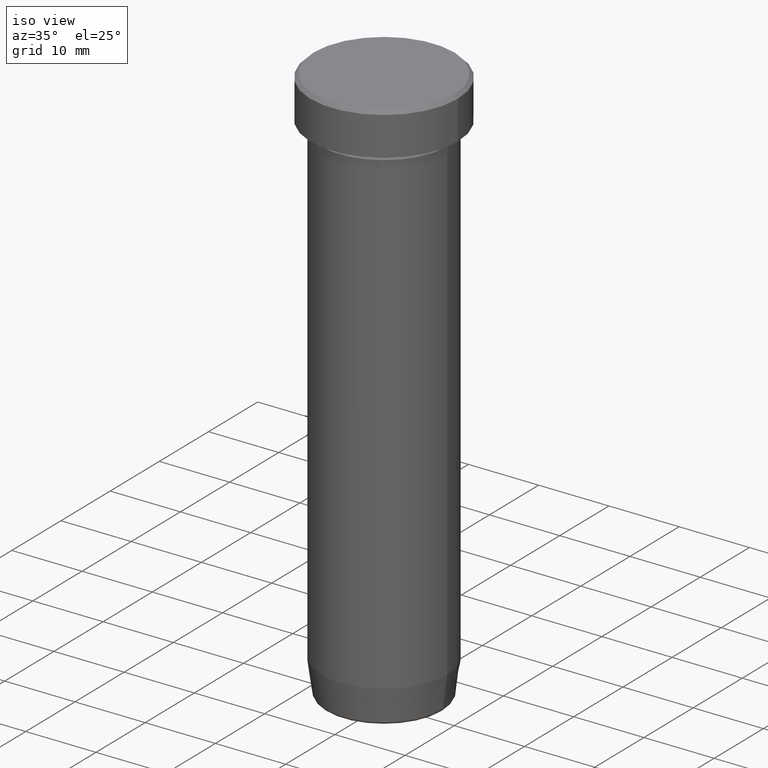
[diagram: clean part render]
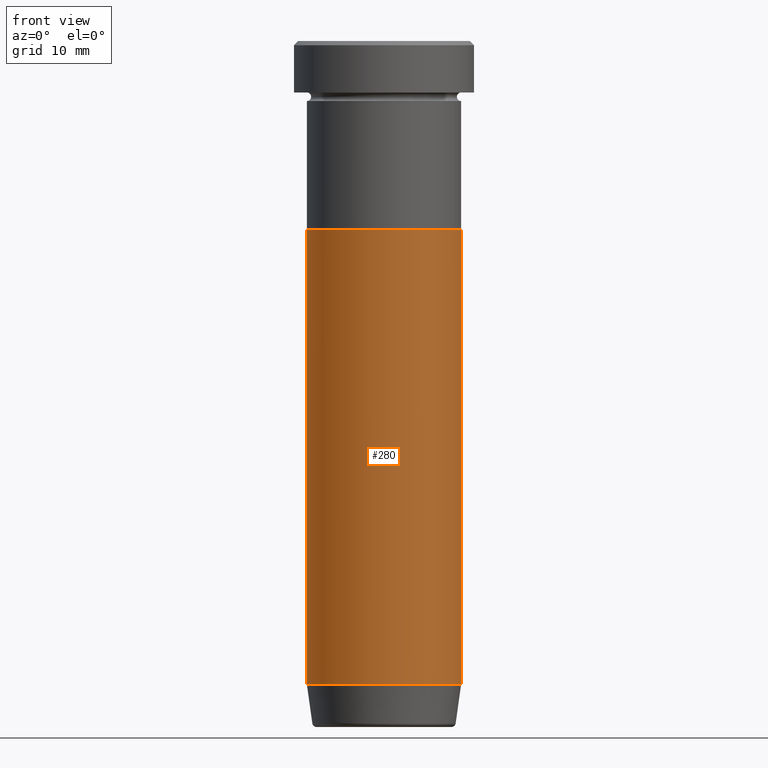
[diagram: tour spotlight — one face highlighted and labeled with its STEP entity id]
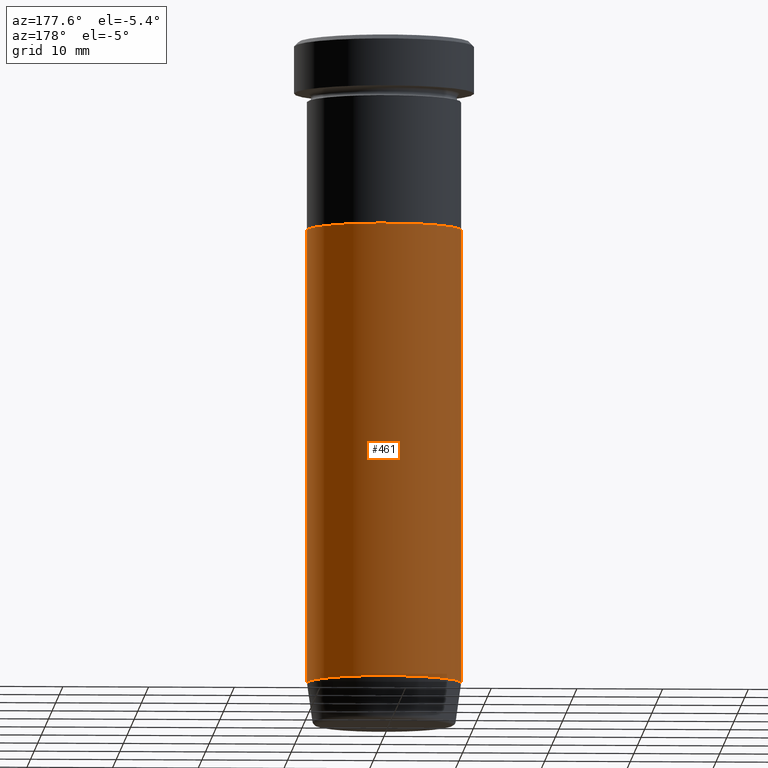
[diagram: tour spotlight — one face highlighted and labeled with its STEP entity id]
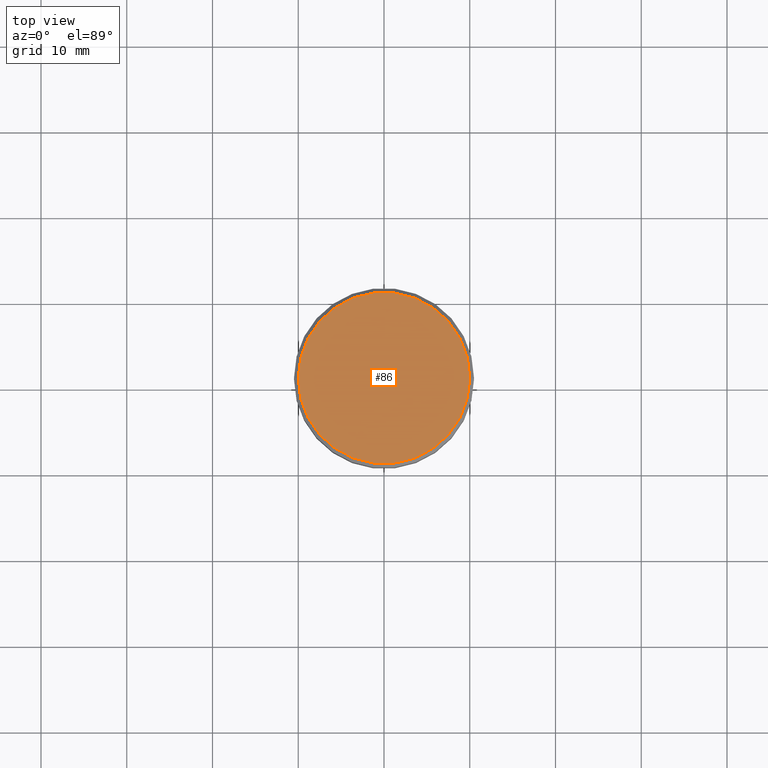
[diagram: tour spotlight — one face highlighted and labeled with its STEP entity id]
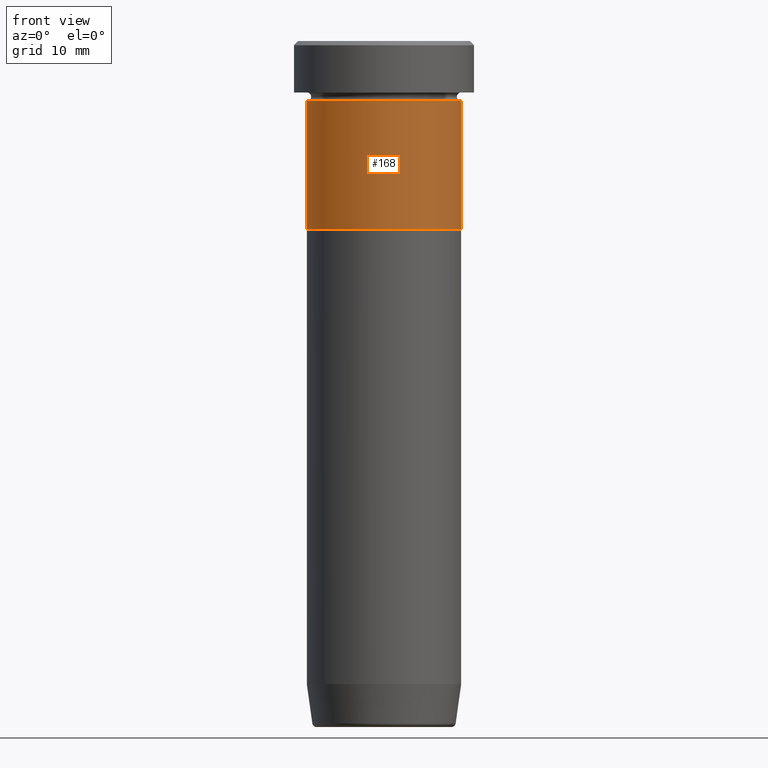
[diagram: tour spotlight — one face highlighted and labeled with its STEP entity id]
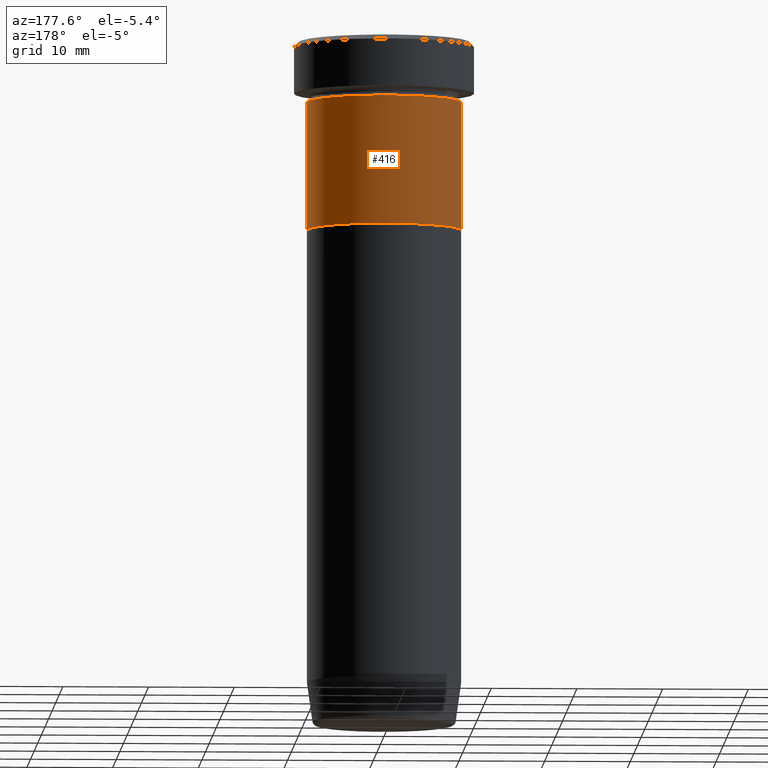
[diagram: tour spotlight — one face highlighted and labeled with its STEP entity id]
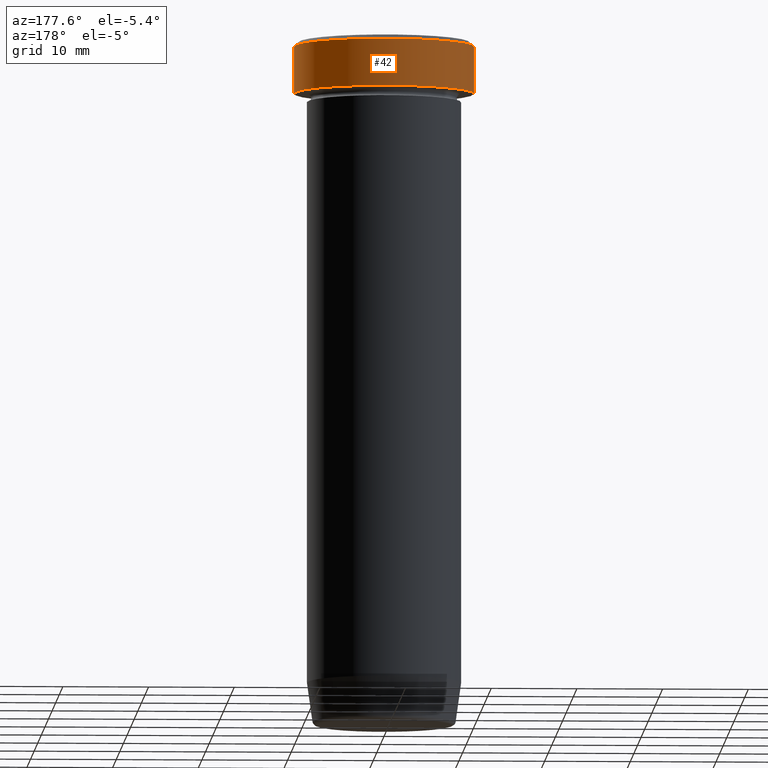
[diagram: tour spotlight — one face highlighted and labeled with its STEP entity id]
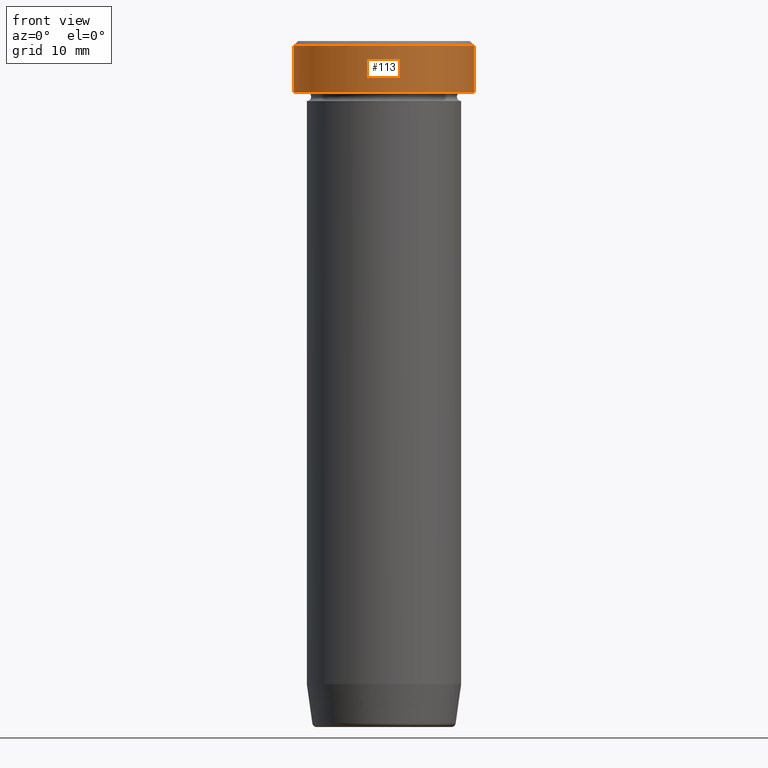
[diagram: tour spotlight — one face highlighted and labeled with its STEP entity id]
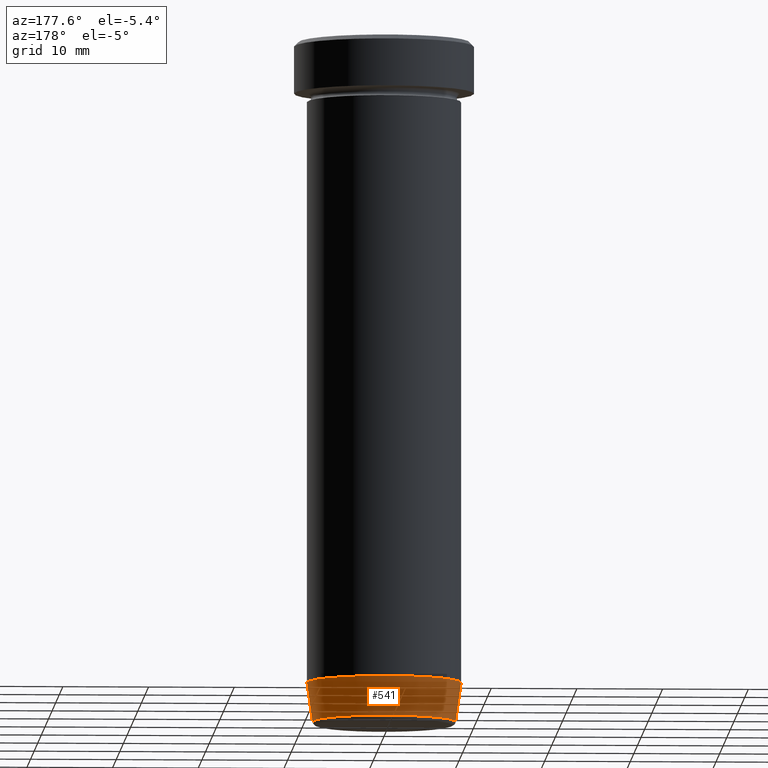
[diagram: tour spotlight — one face highlighted and labeled with its STEP entity id]
A machine part: a face-by-face anatomy tour. The part has 21 B-rep faces; the first image is the clean iso view, then the 8 largest visible faces are spotlighted one at a time (largest first), each with its STEP entity span.

Face 1 — front view, entity #280. In plain terms, the highlighted cylindrical surface (partial cylindrical patch) has radius 9 mm, axis along (-0, -0, 1).
Definition (entity closure, byte-faithful):
#3 = DIRECTION ( 'NONE',  ( -0.000000000000000000, -0.000000000000000000, 1.000000000000000000 ) ) ;
#18 = CARTESIAN_POINT ( 'NONE',  ( 0.000000000000000000, 0.000000000000000000, -22.00000000000000000 ) ) ;
#25 = CARTESIAN_POINT ( 'NONE',  ( 9.000000000000000000, 0.000000000000000000, 0.000000000000000000 ) ) ;
#55 = EDGE_CURVE ( 'NONE', #258, #388, #386, .T. ) ;
#63 = DIRECTION ( 'NONE',  ( -0.000000000000000000, -0.000000000000000000, 1.000000000000000000 ) ) ;
#72 = ORIENTED_EDGE ( 'NONE', *, *, #297, .T. ) ;
#96 = DIRECTION ( 'NONE',  ( -0.000000000000000000, -0.000000000000000000, 1.000000000000000000 ) ) ;
#99 = CIRCLE ( 'NONE', #534, 9.000000000000000000 ) ;
#140 = CYLINDRICAL_SURFACE ( 'NONE', #513, 9.000000000000000000 ) ;
#146 = CIRCLE ( 'NONE', #410, 9.000000000000000000 ) ;
#177 = VECTOR ( 'NONE', #216, 1000.000000000000000 ) ;
#179 = DIRECTION ( 'NONE',  ( 1.000000000000000000, 0.000000000000000000, 0.000000000000000000 ) ) ;
#185 = VERTEX_POINT ( 'NONE', #590 ) ;
#200 = FACE_OUTER_BOUND ( 'NONE', #269, .T. ) ;
#206 = DIRECTION ( 'NONE',  ( 1.000000000000000000, 0.000000000000000000, 0.000000000000000000 ) ) ;
#216 = DIRECTION ( 'NONE',  ( -0.000000000000000000, -0.000000000000000000, 1.000000000000000000 ) ) ;
#258 = VERTEX_POINT ( 'NONE', #422 ) ;
#269 = EDGE_LOOP ( 'NONE', ( #335, #72, #357, #424 ) ) ;
#280 = ADVANCED_FACE ( 'NONE', ( #200 ), #140, .T. ) ;
#297 = EDGE_CURVE ( 'NONE', #258, #491, #99, .T. ) ;
#324 = CARTESIAN_POINT ( 'NONE',  ( 0.000000000000000000, 0.000000000000000000, 0.000000000000000000 ) ) ;
#335 = ORIENTED_EDGE ( 'NONE', *, *, #55, .F. ) ;
#344 = DIRECTION ( 'NONE',  ( -0.000000000000000000, -0.000000000000000000, 1.000000000000000000 ) ) ;
#348 = LINE ( 'NONE', #25, #177 ) ;
#357 = ORIENTED_EDGE ( 'NONE', *, *, #474, .T. ) ;
#380 = CARTESIAN_POINT ( 'NONE',  ( -9.000000000000000000, 1.102182119232617714E-15, -22.00000000000000000 ) ) ;
#386 = LINE ( 'NONE', #484, #521 ) ;
#388 = VERTEX_POINT ( 'NONE', #380 ) ;
#410 = AXIS2_PLACEMENT_3D ( 'NONE', #18, #63, #206 ) ;
#422 = CARTESIAN_POINT ( 'NONE',  ( -9.000000000000000000, 1.102182119232617714E-15, -75.00000000000001421 ) ) ;
#424 = ORIENTED_EDGE ( 'NONE', *, *, #430, .F. ) ;
#430 = EDGE_CURVE ( 'NONE', #388, #185, #146, .T. ) ;
#474 = EDGE_CURVE ( 'NONE', #491, #185, #348, .T. ) ;
#484 = CARTESIAN_POINT ( 'NONE',  ( -9.000000000000000000, 1.102182119232617714E-15, 0.000000000000000000 ) ) ;
#491 = VERTEX_POINT ( 'NONE', #578 ) ;
#500 = CARTESIAN_POINT ( 'NONE',  ( 0.000000000000000000, 0.000000000000000000, -75.00000000000001421 ) ) ;
#506 = DIRECTION ( 'NONE',  ( 1.000000000000000000, 0.000000000000000000, 0.000000000000000000 ) ) ;
#513 = AXIS2_PLACEMENT_3D ( 'NONE', #324, #3, #506 ) ;
#521 = VECTOR ( 'NONE', #344, 1000.000000000000000 ) ;
#534 = AXIS2_PLACEMENT_3D ( 'NONE', #500, #96, #179 ) ;
#578 = CARTESIAN_POINT ( 'NONE',  ( 9.000000000000000000, 0.000000000000000000, -75.00000000000001421 ) ) ;
#590 = CARTESIAN_POINT ( 'NONE',  ( 9.000000000000000000, 0.000000000000000000, -22.00000000000000000 ) ) ;

Face 2 — auxiliary view, entity #461. In plain terms, the highlighted cylindrical surface (partial cylindrical patch) has radius 9 mm, axis along (-0, -0, 1).
Definition (entity closure, byte-faithful):
#17 = DIRECTION ( 'NONE',  ( -0.000000000000000000, -0.000000000000000000, 1.000000000000000000 ) ) ;
#25 = CARTESIAN_POINT ( 'NONE',  ( 9.000000000000000000, 0.000000000000000000, 0.000000000000000000 ) ) ;
#27 = CARTESIAN_POINT ( 'NONE',  ( 0.000000000000000000, 0.000000000000000000, -22.00000000000000000 ) ) ;
#32 = CARTESIAN_POINT ( 'NONE',  ( 0.000000000000000000, 0.000000000000000000, 0.000000000000000000 ) ) ;
#55 = EDGE_CURVE ( 'NONE', #258, #388, #386, .T. ) ;
#56 = EDGE_CURVE ( 'NONE', #185, #388, #127, .T. ) ;
#73 = DIRECTION ( 'NONE',  ( 1.000000000000000000, 0.000000000000000000, 0.000000000000000000 ) ) ;
#81 = AXIS2_PLACEMENT_3D ( 'NONE', #32, #537, #73 ) ;
#124 = DIRECTION ( 'NONE',  ( 1.000000000000000000, 0.000000000000000000, 0.000000000000000000 ) ) ;
#127 = CIRCLE ( 'NONE', #290, 9.000000000000000000 ) ;
#147 = CARTESIAN_POINT ( 'NONE',  ( 0.000000000000000000, 0.000000000000000000, -75.00000000000001421 ) ) ;
#149 = ORIENTED_EDGE ( 'NONE', *, *, #413, .T. ) ;
#177 = VECTOR ( 'NONE', #216, 1000.000000000000000 ) ;
#185 = VERTEX_POINT ( 'NONE', #590 ) ;
#216 = DIRECTION ( 'NONE',  ( -0.000000000000000000, -0.000000000000000000, 1.000000000000000000 ) ) ;
#220 = CYLINDRICAL_SURFACE ( 'NONE', #81, 9.000000000000000000 ) ;
#258 = VERTEX_POINT ( 'NONE', #422 ) ;
#290 = AXIS2_PLACEMENT_3D ( 'NONE', #27, #17, #124 ) ;
#344 = DIRECTION ( 'NONE',  ( -0.000000000000000000, -0.000000000000000000, 1.000000000000000000 ) ) ;
#348 = LINE ( 'NONE', #25, #177 ) ;
#358 = CIRCLE ( 'NONE', #555, 9.000000000000000000 ) ;
#380 = CARTESIAN_POINT ( 'NONE',  ( -9.000000000000000000, 1.102182119232617714E-15, -22.00000000000000000 ) ) ;
#386 = LINE ( 'NONE', #484, #521 ) ;
#388 = VERTEX_POINT ( 'NONE', #380 ) ;
#395 = ORIENTED_EDGE ( 'NONE', *, *, #55, .T. ) ;
#413 = EDGE_CURVE ( 'NONE', #491, #258, #358, .T. ) ;
#422 = CARTESIAN_POINT ( 'NONE',  ( -9.000000000000000000, 1.102182119232617714E-15, -75.00000000000001421 ) ) ;
#439 = FACE_OUTER_BOUND ( 'NONE', #597, .T. ) ;
#457 = ORIENTED_EDGE ( 'NONE', *, *, #56, .F. ) ;
#461 = ADVANCED_FACE ( 'NONE', ( #439 ), #220, .T. ) ;
#470 = DIRECTION ( 'NONE',  ( 1.000000000000000000, 0.000000000000000000, 0.000000000000000000 ) ) ;
#474 = EDGE_CURVE ( 'NONE', #491, #185, #348, .T. ) ;
#484 = CARTESIAN_POINT ( 'NONE',  ( -9.000000000000000000, 1.102182119232617714E-15, 0.000000000000000000 ) ) ;
#491 = VERTEX_POINT ( 'NONE', #578 ) ;
#521 = VECTOR ( 'NONE', #344, 1000.000000000000000 ) ;
#537 = DIRECTION ( 'NONE',  ( -0.000000000000000000, -0.000000000000000000, 1.000000000000000000 ) ) ;
#555 = AXIS2_PLACEMENT_3D ( 'NONE', #147, #565, #470 ) ;
#565 = DIRECTION ( 'NONE',  ( -0.000000000000000000, -0.000000000000000000, 1.000000000000000000 ) ) ;
#572 = ORIENTED_EDGE ( 'NONE', *, *, #474, .F. ) ;
#578 = CARTESIAN_POINT ( 'NONE',  ( 9.000000000000000000, 0.000000000000000000, -75.00000000000001421 ) ) ;
#590 = CARTESIAN_POINT ( 'NONE',  ( 9.000000000000000000, 0.000000000000000000, -22.00000000000000000 ) ) ;
#597 = EDGE_LOOP ( 'NONE', ( #149, #395, #457, #572 ) ) ;

Face 3 — top view, entity #86. In plain terms, the highlighted planar face has unit normal (0, -0, 1).
Definition (entity closure, byte-faithful):
#62 = DIRECTION ( 'NONE',  ( -0.000000000000000000, -0.000000000000000000, 1.000000000000000000 ) ) ;
#86 = ADVANCED_FACE ( 'NONE', ( #396 ), #437, .T. ) ;
#89 = CIRCLE ( 'NONE', #493, 10.00000000000000178 ) ;
#91 = ORIENTED_EDGE ( 'NONE', *, *, #257, .T. ) ;
#106 = DIRECTION ( 'NONE',  ( -0.000000000000000000, -0.000000000000000000, 1.000000000000000000 ) ) ;
#134 = VERTEX_POINT ( 'NONE', #250 ) ;
#162 = DIRECTION ( 'NONE',  ( 0.000000000000000000, -0.000000000000000000, 1.000000000000000000 ) ) ;
#213 = ORIENTED_EDGE ( 'NONE', *, *, #277, .T. ) ;
#228 = VERTEX_POINT ( 'NONE', #509 ) ;
#233 = CIRCLE ( 'NONE', #282, 10.00000000000000178 ) ;
#250 = CARTESIAN_POINT ( 'NONE',  ( -10.00000000000000178, 0.000000000000000000, 0.000000000000000000 ) ) ;
#257 = EDGE_CURVE ( 'NONE', #228, #134, #89, .T. ) ;
#270 = AXIS2_PLACEMENT_3D ( 'NONE', #308, #162, #469 ) ;
#277 = EDGE_CURVE ( 'NONE', #134, #228, #233, .T. ) ;
#282 = AXIS2_PLACEMENT_3D ( 'NONE', #417, #106, #292 ) ;
#292 = DIRECTION ( 'NONE',  ( 1.000000000000000000, 0.000000000000000000, 0.000000000000000000 ) ) ;
#308 = CARTESIAN_POINT ( 'NONE',  ( 0.000000000000000000, 0.000000000000000000, 0.000000000000000000 ) ) ;
#396 = FACE_OUTER_BOUND ( 'NONE', #420, .T. ) ;
#417 = CARTESIAN_POINT ( 'NONE',  ( 0.000000000000000000, 0.000000000000000000, 0.000000000000000000 ) ) ;
#420 = EDGE_LOOP ( 'NONE', ( #213, #91 ) ) ;
#437 = PLANE ( 'NONE',  #270 ) ;
#469 = DIRECTION ( 'NONE',  ( 1.000000000000000000, 0.000000000000000000, 0.000000000000000000 ) ) ;
#493 = AXIS2_PLACEMENT_3D ( 'NONE', #511, #62, #560 ) ;
#509 = CARTESIAN_POINT ( 'NONE',  ( 10.00000000000000178, 1.255262969126037241E-15, 0.000000000000000000 ) ) ;
#511 = CARTESIAN_POINT ( 'NONE',  ( 0.000000000000000000, 0.000000000000000000, 0.000000000000000000 ) ) ;
#560 = DIRECTION ( 'NONE',  ( 1.000000000000000000, 0.000000000000000000, 0.000000000000000000 ) ) ;

Face 4 — front view, entity #168. In plain terms, the highlighted cylindrical surface (partial cylindrical patch) has radius 9 mm, axis along (-0, -0, 1).
Definition (entity closure, byte-faithful):
#26 = VERTEX_POINT ( 'NONE', #501 ) ;
#28 = DIRECTION ( 'NONE',  ( 1.000000000000000000, 0.000000000000000000, 0.000000000000000000 ) ) ;
#87 = ORIENTED_EDGE ( 'NONE', *, *, #471, .F. ) ;
#121 = CARTESIAN_POINT ( 'NONE',  ( -9.000000000000000000, 1.102182119232617714E-15, 0.000000000000000000 ) ) ;
#128 = AXIS2_PLACEMENT_3D ( 'NONE', #223, #310, #263 ) ;
#130 = AXIS2_PLACEMENT_3D ( 'NONE', #235, #421, #300 ) ;
#133 = CARTESIAN_POINT ( 'NONE',  ( 9.000000000000000000, 0.000000000000000000, 0.000000000000000000 ) ) ;
#167 = VERTEX_POINT ( 'NONE', #585 ) ;
#168 = ADVANCED_FACE ( 'NONE', ( #454 ), #190, .T. ) ;
#182 = ORIENTED_EDGE ( 'NONE', *, *, #588, .T. ) ;
#187 = DIRECTION ( 'NONE',  ( -0.000000000000000000, -0.000000000000000000, 1.000000000000000000 ) ) ;
#190 = CYLINDRICAL_SURFACE ( 'NONE', #128, 9.000000000000000000 ) ;
#204 = VERTEX_POINT ( 'NONE', #362 ) ;
#207 = VERTEX_POINT ( 'NONE', #551 ) ;
#218 = ORIENTED_EDGE ( 'NONE', *, *, #321, .F. ) ;
#223 = CARTESIAN_POINT ( 'NONE',  ( 0.000000000000000000, 0.000000000000000000, 0.000000000000000000 ) ) ;
#235 = CARTESIAN_POINT ( 'NONE',  ( 0.000000000000000000, 0.000000000000000000, -7.000000000000000000 ) ) ;
#263 = DIRECTION ( 'NONE',  ( 1.000000000000000000, 0.000000000000000000, 0.000000000000000000 ) ) ;
#284 = CIRCLE ( 'NONE', #575, 9.000000000000000000 ) ;
#291 = CIRCLE ( 'NONE', #130, 9.000000000000000000 ) ;
#300 = DIRECTION ( 'NONE',  ( 1.000000000000000000, 0.000000000000000000, 0.000000000000000000 ) ) ;
#310 = DIRECTION ( 'NONE',  ( -0.000000000000000000, -0.000000000000000000, 1.000000000000000000 ) ) ;
#321 = EDGE_CURVE ( 'NONE', #207, #204, #291, .T. ) ;
#362 = CARTESIAN_POINT ( 'NONE',  ( 9.000000000000000000, 0.000000000000000000, -7.000000000000000000 ) ) ;
#387 = DIRECTION ( 'NONE',  ( -0.000000000000000000, -0.000000000000000000, 1.000000000000000000 ) ) ;
#390 = LINE ( 'NONE', #133, #495 ) ;
#391 = VECTOR ( 'NONE', #387, 1000.000000000000000 ) ;
#421 = DIRECTION ( 'NONE',  ( -0.000000000000000000, -0.000000000000000000, 1.000000000000000000 ) ) ;
#446 = LINE ( 'NONE', #121, #391 ) ;
#454 = FACE_OUTER_BOUND ( 'NONE', #530, .T. ) ;
#466 = EDGE_CURVE ( 'NONE', #167, #26, #284, .T. ) ;
#471 = EDGE_CURVE ( 'NONE', #167, #207, #446, .T. ) ;
#495 = VECTOR ( 'NONE', #187, 1000.000000000000000 ) ;
#501 = CARTESIAN_POINT ( 'NONE',  ( 9.000000000000000000, 0.000000000000000000, -22.00000000000000000 ) ) ;
#526 = CARTESIAN_POINT ( 'NONE',  ( 0.000000000000000000, 0.000000000000000000, -22.00000000000000000 ) ) ;
#527 = ORIENTED_EDGE ( 'NONE', *, *, #466, .T. ) ;
#530 = EDGE_LOOP ( 'NONE', ( #87, #527, #182, #218 ) ) ;
#551 = CARTESIAN_POINT ( 'NONE',  ( -9.000000000000000000, 1.102182119232617714E-15, -7.000000000000000000 ) ) ;
#575 = AXIS2_PLACEMENT_3D ( 'NONE', #526, #586, #28 ) ;
#585 = CARTESIAN_POINT ( 'NONE',  ( -9.000000000000000000, 1.102182119232617714E-15, -22.00000000000000000 ) ) ;
#586 = DIRECTION ( 'NONE',  ( -0.000000000000000000, -0.000000000000000000, 1.000000000000000000 ) ) ;
#588 = EDGE_CURVE ( 'NONE', #26, #204, #390, .T. ) ;

Face 5 — auxiliary view, entity #416. In plain terms, the highlighted cylindrical surface (partial cylindrical patch) has radius 9 mm, axis along (-0, -0, 1).
Definition (entity closure, byte-faithful):
#11 = DIRECTION ( 'NONE',  ( -0.000000000000000000, -0.000000000000000000, 1.000000000000000000 ) ) ;
#16 = AXIS2_PLACEMENT_3D ( 'NONE', #384, #11, #158 ) ;
#26 = VERTEX_POINT ( 'NONE', #501 ) ;
#58 = CIRCLE ( 'NONE', #16, 9.000000000000000000 ) ;
#108 = CARTESIAN_POINT ( 'NONE',  ( 0.000000000000000000, 0.000000000000000000, 0.000000000000000000 ) ) ;
#121 = CARTESIAN_POINT ( 'NONE',  ( -9.000000000000000000, 1.102182119232617714E-15, 0.000000000000000000 ) ) ;
#133 = CARTESIAN_POINT ( 'NONE',  ( 9.000000000000000000, 0.000000000000000000, 0.000000000000000000 ) ) ;
#156 = ORIENTED_EDGE ( 'NONE', *, *, #375, .F. ) ;
#158 = DIRECTION ( 'NONE',  ( 1.000000000000000000, 0.000000000000000000, 0.000000000000000000 ) ) ;
#167 = VERTEX_POINT ( 'NONE', #585 ) ;
#170 = DIRECTION ( 'NONE',  ( -0.000000000000000000, -0.000000000000000000, 1.000000000000000000 ) ) ;
#187 = DIRECTION ( 'NONE',  ( -0.000000000000000000, -0.000000000000000000, 1.000000000000000000 ) ) ;
#204 = VERTEX_POINT ( 'NONE', #362 ) ;
#207 = VERTEX_POINT ( 'NONE', #551 ) ;
#275 = ORIENTED_EDGE ( 'NONE', *, *, #558, .T. ) ;
#293 = DIRECTION ( 'NONE',  ( -0.000000000000000000, -0.000000000000000000, 1.000000000000000000 ) ) ;
#313 = EDGE_LOOP ( 'NONE', ( #275, #343, #156, #364 ) ) ;
#343 = ORIENTED_EDGE ( 'NONE', *, *, #471, .T. ) ;
#362 = CARTESIAN_POINT ( 'NONE',  ( 9.000000000000000000, 0.000000000000000000, -7.000000000000000000 ) ) ;
#364 = ORIENTED_EDGE ( 'NONE', *, *, #588, .F. ) ;
#375 = EDGE_CURVE ( 'NONE', #204, #207, #58, .T. ) ;
#384 = CARTESIAN_POINT ( 'NONE',  ( 0.000000000000000000, 0.000000000000000000, -7.000000000000000000 ) ) ;
#387 = DIRECTION ( 'NONE',  ( -0.000000000000000000, -0.000000000000000000, 1.000000000000000000 ) ) ;
#390 = LINE ( 'NONE', #133, #495 ) ;
#391 = VECTOR ( 'NONE', #387, 1000.000000000000000 ) ;
#416 = ADVANCED_FACE ( 'NONE', ( #515 ), #426, .T. ) ;
#426 = CYLINDRICAL_SURFACE ( 'NONE', #427, 9.000000000000000000 ) ;
#427 = AXIS2_PLACEMENT_3D ( 'NONE', #108, #293, #467 ) ;
#431 = CARTESIAN_POINT ( 'NONE',  ( 0.000000000000000000, 0.000000000000000000, -22.00000000000000000 ) ) ;
#446 = LINE ( 'NONE', #121, #391 ) ;
#467 = DIRECTION ( 'NONE',  ( 1.000000000000000000, 0.000000000000000000, 0.000000000000000000 ) ) ;
#471 = EDGE_CURVE ( 'NONE', #167, #207, #446, .T. ) ;
#488 = DIRECTION ( 'NONE',  ( 1.000000000000000000, 0.000000000000000000, 0.000000000000000000 ) ) ;
#495 = VECTOR ( 'NONE', #187, 1000.000000000000000 ) ;
#501 = CARTESIAN_POINT ( 'NONE',  ( 9.000000000000000000, 0.000000000000000000, -22.00000000000000000 ) ) ;
#515 = FACE_OUTER_BOUND ( 'NONE', #313, .T. ) ;
#523 = AXIS2_PLACEMENT_3D ( 'NONE', #431, #170, #488 ) ;
#546 = CIRCLE ( 'NONE', #523, 9.000000000000000000 ) ;
#551 = CARTESIAN_POINT ( 'NONE',  ( -9.000000000000000000, 1.102182119232617714E-15, -7.000000000000000000 ) ) ;
#558 = EDGE_CURVE ( 'NONE', #26, #167, #546, .T. ) ;
#585 = CARTESIAN_POINT ( 'NONE',  ( -9.000000000000000000, 1.102182119232617714E-15, -22.00000000000000000 ) ) ;
#588 = EDGE_CURVE ( 'NONE', #26, #204, #390, .T. ) ;

Face 6 — auxiliary view, entity #42. In plain terms, the highlighted cylindrical surface (partial cylindrical patch) has radius 10.5 mm, axis along (-0, -0, 1).
Definition (entity closure, byte-faithful):
#12 = DIRECTION ( 'NONE',  ( 0.000000000000000000, 0.000000000000000000, -1.000000000000000000 ) ) ;
#36 = VECTOR ( 'NONE', #253, 1000.000000000000000 ) ;
#37 = AXIS2_PLACEMENT_3D ( 'NONE', #582, #353, #212 ) ;
#42 = ADVANCED_FACE ( 'NONE', ( #281 ), #459, .T. ) ;
#50 = CARTESIAN_POINT ( 'NONE',  ( 0.000000000000000000, 0.000000000000000000, 0.000000000000000000 ) ) ;
#69 = CIRCLE ( 'NONE', #107, 10.50000000000000000 ) ;
#93 = EDGE_CURVE ( 'NONE', #477, #456, #205, .T. ) ;
#107 = AXIS2_PLACEMENT_3D ( 'NONE', #464, #12, #289 ) ;
#126 = ORIENTED_EDGE ( 'NONE', *, *, #338, .T. ) ;
#169 = DIRECTION ( 'NONE',  ( -0.000000000000000000, -0.000000000000000000, 1.000000000000000000 ) ) ;
#205 = LINE ( 'NONE', #573, #36 ) ;
#212 = DIRECTION ( 'NONE',  ( 1.000000000000000000, 0.000000000000000000, 0.000000000000000000 ) ) ;
#214 = AXIS2_PLACEMENT_3D ( 'NONE', #50, #169, #425 ) ;
#240 = DIRECTION ( 'NONE',  ( -0.000000000000000000, -0.000000000000000000, 1.000000000000000000 ) ) ;
#242 = ORIENTED_EDGE ( 'NONE', *, *, #577, .T. ) ;
#245 = ORIENTED_EDGE ( 'NONE', *, *, #93, .F. ) ;
#253 = DIRECTION ( 'NONE',  ( -0.000000000000000000, -0.000000000000000000, 1.000000000000000000 ) ) ;
#281 = FACE_OUTER_BOUND ( 'NONE', #392, .T. ) ;
#285 = LINE ( 'NONE', #330, #302 ) ;
#289 = DIRECTION ( 'NONE',  ( 1.000000000000000000, 0.000000000000000000, 0.000000000000000000 ) ) ;
#302 = VECTOR ( 'NONE', #240, 1000.000000000000000 ) ;
#311 = VERTEX_POINT ( 'NONE', #539 ) ;
#320 = CARTESIAN_POINT ( 'NONE',  ( -10.50000000000000000, 1.285879139104720831E-15, -0.5000000000000023315 ) ) ;
#330 = CARTESIAN_POINT ( 'NONE',  ( -10.50000000000000000, 1.285879139104720831E-15, 0.000000000000000000 ) ) ;
#338 = EDGE_CURVE ( 'NONE', #591, #456, #69, .T. ) ;
#353 = DIRECTION ( 'NONE',  ( -0.000000000000000000, -0.000000000000000000, 1.000000000000000000 ) ) ;
#356 = EDGE_CURVE ( 'NONE', #311, #591, #285, .T. ) ;
#392 = EDGE_LOOP ( 'NONE', ( #242, #535, #126, #245 ) ) ;
#394 = CARTESIAN_POINT ( 'NONE',  ( 10.50000000000000000, 0.000000000000000000, -6.000000000000000000 ) ) ;
#425 = DIRECTION ( 'NONE',  ( 1.000000000000000000, 0.000000000000000000, 0.000000000000000000 ) ) ;
#456 = VERTEX_POINT ( 'NONE', #482 ) ;
#459 = CYLINDRICAL_SURFACE ( 'NONE', #214, 10.50000000000000000 ) ;
#464 = CARTESIAN_POINT ( 'NONE',  ( 0.000000000000000000, 0.000000000000000000, -0.5000000000000023315 ) ) ;
#477 = VERTEX_POINT ( 'NONE', #394 ) ;
#482 = CARTESIAN_POINT ( 'NONE',  ( 10.50000000000000000, 0.000000000000000000, -0.5000000000000023315 ) ) ;
#486 = CIRCLE ( 'NONE', #37, 10.50000000000000000 ) ;
#535 = ORIENTED_EDGE ( 'NONE', *, *, #356, .T. ) ;
#539 = CARTESIAN_POINT ( 'NONE',  ( -10.50000000000000000, 1.285879139104720831E-15, -6.000000000000000000 ) ) ;
#573 = CARTESIAN_POINT ( 'NONE',  ( 10.50000000000000000, 0.000000000000000000, 0.000000000000000000 ) ) ;
#577 = EDGE_CURVE ( 'NONE', #477, #311, #486, .T. ) ;
#582 = CARTESIAN_POINT ( 'NONE',  ( 0.000000000000000000, 0.000000000000000000, -6.000000000000000000 ) ) ;
#591 = VERTEX_POINT ( 'NONE', #320 ) ;

Face 7 — front view, entity #113. In plain terms, the highlighted cylindrical surface (partial cylindrical patch) has radius 10.5 mm, axis along (-0, -0, 1).
Definition (entity closure, byte-faithful):
#15 = CIRCLE ( 'NONE', #176, 10.50000000000000000 ) ;
#24 = CYLINDRICAL_SURFACE ( 'NONE', #402, 10.50000000000000000 ) ;
#36 = VECTOR ( 'NONE', #253, 1000.000000000000000 ) ;
#68 = EDGE_LOOP ( 'NONE', ( #583, #172, #131, #266 ) ) ;
#93 = EDGE_CURVE ( 'NONE', #477, #456, #205, .T. ) ;
#113 = ADVANCED_FACE ( 'NONE', ( #518 ), #24, .T. ) ;
#131 = ORIENTED_EDGE ( 'NONE', *, *, #93, .T. ) ;
#143 = EDGE_CURVE ( 'NONE', #311, #477, #241, .T. ) ;
#145 = AXIS2_PLACEMENT_3D ( 'NONE', #307, #429, #215 ) ;
#152 = EDGE_CURVE ( 'NONE', #456, #591, #15, .T. ) ;
#165 = CARTESIAN_POINT ( 'NONE',  ( 0.000000000000000000, 0.000000000000000000, -0.5000000000000023315 ) ) ;
#172 = ORIENTED_EDGE ( 'NONE', *, *, #143, .T. ) ;
#176 = AXIS2_PLACEMENT_3D ( 'NONE', #165, #576, #481 ) ;
#205 = LINE ( 'NONE', #573, #36 ) ;
#215 = DIRECTION ( 'NONE',  ( 1.000000000000000000, 0.000000000000000000, 0.000000000000000000 ) ) ;
#240 = DIRECTION ( 'NONE',  ( -0.000000000000000000, -0.000000000000000000, 1.000000000000000000 ) ) ;
#241 = CIRCLE ( 'NONE', #145, 10.50000000000000000 ) ;
#253 = DIRECTION ( 'NONE',  ( -0.000000000000000000, -0.000000000000000000, 1.000000000000000000 ) ) ;
#266 = ORIENTED_EDGE ( 'NONE', *, *, #152, .T. ) ;
#285 = LINE ( 'NONE', #330, #302 ) ;
#299 = DIRECTION ( 'NONE',  ( 1.000000000000000000, 0.000000000000000000, 0.000000000000000000 ) ) ;
#302 = VECTOR ( 'NONE', #240, 1000.000000000000000 ) ;
#307 = CARTESIAN_POINT ( 'NONE',  ( 0.000000000000000000, 0.000000000000000000, -6.000000000000000000 ) ) ;
#311 = VERTEX_POINT ( 'NONE', #539 ) ;
#320 = CARTESIAN_POINT ( 'NONE',  ( -10.50000000000000000, 1.285879139104720831E-15, -0.5000000000000023315 ) ) ;
#330 = CARTESIAN_POINT ( 'NONE',  ( -10.50000000000000000, 1.285879139104720831E-15, 0.000000000000000000 ) ) ;
#356 = EDGE_CURVE ( 'NONE', #311, #591, #285, .T. ) ;
#383 = CARTESIAN_POINT ( 'NONE',  ( 0.000000000000000000, 0.000000000000000000, 0.000000000000000000 ) ) ;
#394 = CARTESIAN_POINT ( 'NONE',  ( 10.50000000000000000, 0.000000000000000000, -6.000000000000000000 ) ) ;
#402 = AXIS2_PLACEMENT_3D ( 'NONE', #383, #567, #299 ) ;
#429 = DIRECTION ( 'NONE',  ( -0.000000000000000000, -0.000000000000000000, 1.000000000000000000 ) ) ;
#456 = VERTEX_POINT ( 'NONE', #482 ) ;
#477 = VERTEX_POINT ( 'NONE', #394 ) ;
#481 = DIRECTION ( 'NONE',  ( 1.000000000000000000, 0.000000000000000000, 0.000000000000000000 ) ) ;
#482 = CARTESIAN_POINT ( 'NONE',  ( 10.50000000000000000, 0.000000000000000000, -0.5000000000000023315 ) ) ;
#518 = FACE_OUTER_BOUND ( 'NONE', #68, .T. ) ;
#539 = CARTESIAN_POINT ( 'NONE',  ( -10.50000000000000000, 1.285879139104720831E-15, -6.000000000000000000 ) ) ;
#567 = DIRECTION ( 'NONE',  ( -0.000000000000000000, -0.000000000000000000, 1.000000000000000000 ) ) ;
#573 = CARTESIAN_POINT ( 'NONE',  ( 10.50000000000000000, 0.000000000000000000, 0.000000000000000000 ) ) ;
#576 = DIRECTION ( 'NONE',  ( 0.000000000000000000, 0.000000000000000000, -1.000000000000000000 ) ) ;
#583 = ORIENTED_EDGE ( 'NONE', *, *, #356, .F. ) ;
#591 = VERTEX_POINT ( 'NONE', #320 ) ;

Face 8 — auxiliary view, entity #541. In plain terms, the highlighted conical surface has half-angle 8 deg.
Definition (entity closure, byte-faithful):
#43 = ORIENTED_EDGE ( 'NONE', *, *, #173, .F. ) ;
#44 = LINE ( 'NONE', #536, #115 ) ;
#46 = EDGE_CURVE ( 'NONE', #436, #114, #159, .T. ) ;
#57 = CARTESIAN_POINT ( 'NONE',  ( -8.297295826488037207, 1.016125677548726751E-15, -80.00000000000001421 ) ) ;
#67 = DIRECTION ( 'NONE',  ( -0.1391731009600662428, 1.704378926181565534E-17, 0.9902680687415702510 ) ) ;
#101 = LINE ( 'NONE', #57, #317 ) ;
#114 = VERTEX_POINT ( 'NONE', #157 ) ;
#115 = VECTOR ( 'NONE', #401, 1000.000000000000000 ) ;
#147 = CARTESIAN_POINT ( 'NONE',  ( 0.000000000000000000, 0.000000000000000000, -75.00000000000001421 ) ) ;
#157 = CARTESIAN_POINT ( 'NONE',  ( -8.357786491950706775, 1.062857883382529722E-15, -79.56958655048006790 ) ) ;
#159 = CIRCLE ( 'NONE', #574, 8.357786491950706775 ) ;
#173 = EDGE_CURVE ( 'NONE', #436, #491, #44, .T. ) ;
#202 = CONICAL_SURFACE ( 'NONE', #504, 8.297295826488037207, 0.1396263401595471687 ) ;
#210 = EDGE_LOOP ( 'NONE', ( #238, #403, #552, #43 ) ) ;
#238 = ORIENTED_EDGE ( 'NONE', *, *, #46, .T. ) ;
#258 = VERTEX_POINT ( 'NONE', #422 ) ;
#264 = CARTESIAN_POINT ( 'NONE',  ( 0.000000000000000000, 0.000000000000000000, -80.00000000000001421 ) ) ;
#286 = EDGE_CURVE ( 'NONE', #114, #258, #101, .T. ) ;
#304 = DIRECTION ( 'NONE',  ( -0.000000000000000000, -0.000000000000000000, 1.000000000000000000 ) ) ;
#305 = FACE_OUTER_BOUND ( 'NONE', #210, .T. ) ;
#317 = VECTOR ( 'NONE', #67, 1000.000000000000000 ) ;
#342 = CARTESIAN_POINT ( 'NONE',  ( 8.357786491950706775, 0.000000000000000000, -79.56958655048006790 ) ) ;
#358 = CIRCLE ( 'NONE', #555, 9.000000000000000000 ) ;
#359 = DIRECTION ( 'NONE',  ( -0.000000000000000000, -0.000000000000000000, 1.000000000000000000 ) ) ;
#401 = DIRECTION ( 'NONE',  ( 0.1391731009600662428, 0.000000000000000000, 0.9902680687415702510 ) ) ;
#403 = ORIENTED_EDGE ( 'NONE', *, *, #286, .T. ) ;
#413 = EDGE_CURVE ( 'NONE', #491, #258, #358, .T. ) ;
#422 = CARTESIAN_POINT ( 'NONE',  ( -9.000000000000000000, 1.102182119232617714E-15, -75.00000000000001421 ) ) ;
#436 = VERTEX_POINT ( 'NONE', #342 ) ;
#470 = DIRECTION ( 'NONE',  ( 1.000000000000000000, 0.000000000000000000, 0.000000000000000000 ) ) ;
#491 = VERTEX_POINT ( 'NONE', #578 ) ;
#504 = AXIS2_PLACEMENT_3D ( 'NONE', #264, #359, #522 ) ;
#522 = DIRECTION ( 'NONE',  ( 1.000000000000000000, 0.000000000000000000, 0.000000000000000000 ) ) ;
#531 = CARTESIAN_POINT ( 'NONE',  ( 0.000000000000000000, 0.000000000000000000, -79.56958655048006790 ) ) ;
#536 = CARTESIAN_POINT ( 'NONE',  ( 8.297295826488037207, 0.000000000000000000, -80.00000000000001421 ) ) ;
#541 = ADVANCED_FACE ( 'NONE', ( #305 ), #202, .T. ) ;
#552 = ORIENTED_EDGE ( 'NONE', *, *, #413, .F. ) ;
#555 = AXIS2_PLACEMENT_3D ( 'NONE', #147, #565, #470 ) ;
#565 = DIRECTION ( 'NONE',  ( -0.000000000000000000, -0.000000000000000000, 1.000000000000000000 ) ) ;
#574 = AXIS2_PLACEMENT_3D ( 'NONE', #531, #304, #581 ) ;
#578 = CARTESIAN_POINT ( 'NONE',  ( 9.000000000000000000, 0.000000000000000000, -75.00000000000001421 ) ) ;
#581 = DIRECTION ( 'NONE',  ( -1.000000000000000000, 0.000000000000000000, 0.000000000000000000 ) ) ;